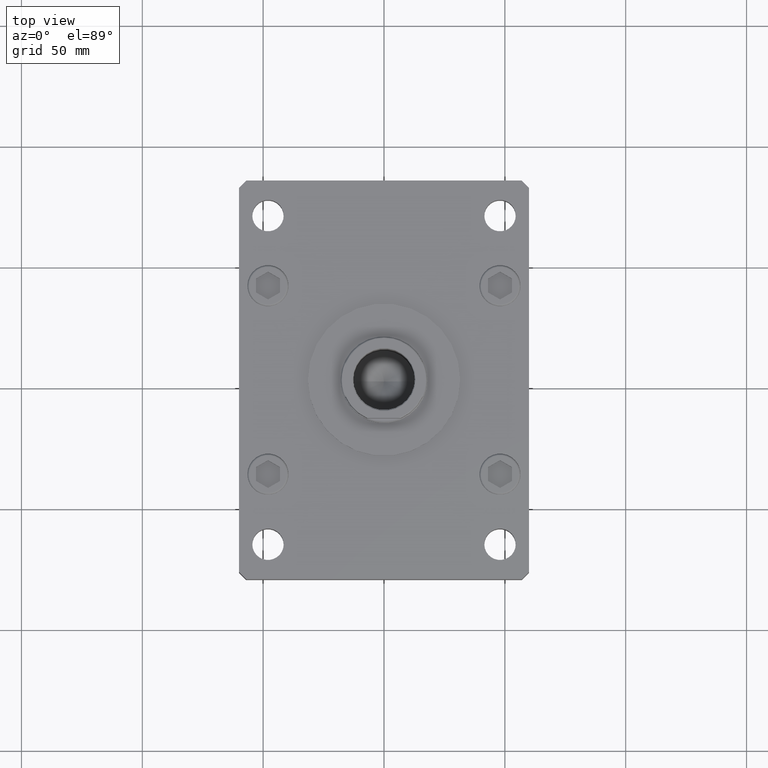
[diagram: clean part render]
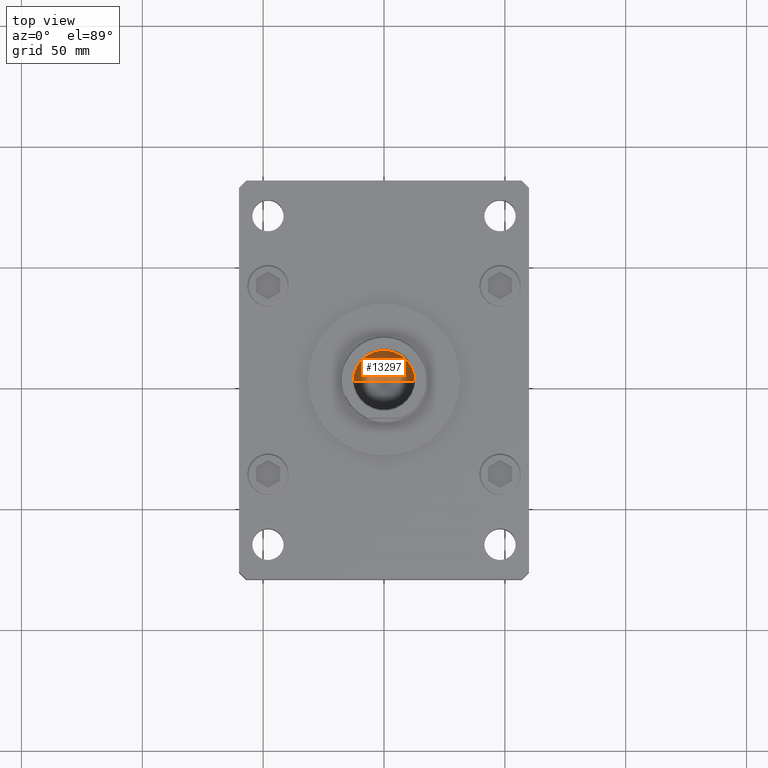
[diagram: same view with one face highlighted and labeled with its STEP entity id]
A machine part, top view. The second image highlights one B-rep face of the part: STEP entity #13297.
In plain terms, the highlighted conical surface has half-angle 59 deg.
Its self-contained STEP definition (entity closure, byte-faithful):
#6595 = VERTEX_POINT ( 'NONE', #21279 ) ;
#9763 = ORIENTED_EDGE ( 'NONE', *, *, #45412, .T. ) ;
#11414 = DIRECTION ( 'NONE',  ( -0.000000000000000000, -0.000000000000000000, 1.000000000000000000 ) ) ;
#11641 = DIRECTION ( 'NONE',  ( -0.000000000000000000, -0.000000000000000000, 1.000000000000000000 ) ) ;
#13297 = ADVANCED_FACE ( 'NONE', ( #32604 ), #24485, .F. ) ;
#17152 = DIRECTION ( 'NONE',  ( 0.8571673007021125557, 0.000000000000000000, 0.5150380749100536004 ) ) ;
#18786 = ORIENTED_EDGE ( 'NONE', *, *, #34435, .F. ) ;
#20760 = LINE ( 'NONE', #29461, #27892 ) ;
#21279 = CARTESIAN_POINT ( 'NONE',  ( -1.307202896762960287E-14, 0.000000000000000000, 136.5890271073986071 ) ) ;
#22054 = LINE ( 'NONE', #50087, #41139 ) ;
#22154 = EDGE_CURVE ( 'NONE', #6595, #33350, #22054, .T. ) ;
#22680 = CARTESIAN_POINT ( 'NONE',  ( 12.74999999999999112, 0.000000000000000000, 144.2500000000000000 ) ) ;
#24485 = CONICAL_SURFACE ( 'NONE', #52293, 12.74999999999999112, 1.029744258676655200 ) ;
#27892 = VECTOR ( 'NONE', #28648, 1000.000000000000114 ) ;
#28648 = DIRECTION ( 'NONE',  ( -0.8571673007021125557, 1.049727191138618942E-16, 0.5150380749100536004 ) ) ;
#29461 = CARTESIAN_POINT ( 'NONE',  ( -12.74999999999999112, 1.561424668912874125E-15, 144.2500000000000000 ) ) ;
#32604 = FACE_OUTER_BOUND ( 'NONE', #38304, .T. ) ;
#33350 = VERTEX_POINT ( 'NONE', #22680 ) ;
#34435 = EDGE_CURVE ( 'NONE', #6595, #53293, #20760, .T. ) ;
#38304 = EDGE_LOOP ( 'NONE', ( #18786, #43863, #9763 ) ) ;
#41139 = VECTOR ( 'NONE', #17152, 1000.000000000000114 ) ;
#41623 = CARTESIAN_POINT ( 'NONE',  ( 0.000000000000000000, 0.000000000000000000, 144.2500000000000000 ) ) ;
#42022 = AXIS2_PLACEMENT_3D ( 'NONE', #41623, #11414, #48991 ) ;
#43767 = CIRCLE ( 'NONE', #42022, 12.74999999999999112 ) ;
#43863 = ORIENTED_EDGE ( 'NONE', *, *, #22154, .T. ) ;
#44580 = DIRECTION ( 'NONE',  ( 1.000000000000000000, 0.000000000000000000, 0.000000000000000000 ) ) ;
#45036 = CARTESIAN_POINT ( 'NONE',  ( -12.74999999999999112, 1.561424668912874125E-15, 144.2500000000000000 ) ) ;
#45412 = EDGE_CURVE ( 'NONE', #33350, #53293, #43767, .T. ) ;
#48940 = CARTESIAN_POINT ( 'NONE',  ( 0.000000000000000000, 0.000000000000000000, 144.2500000000000000 ) ) ;
#48991 = DIRECTION ( 'NONE',  ( 1.000000000000000000, 0.000000000000000000, 0.000000000000000000 ) ) ;
#50087 = CARTESIAN_POINT ( 'NONE',  ( 12.74999999999999112, 0.000000000000000000, 144.2500000000000000 ) ) ;
#52293 = AXIS2_PLACEMENT_3D ( 'NONE', #48940, #11641, #44580 ) ;
#53293 = VERTEX_POINT ( 'NONE', #45036 ) ;